MODEL slx_a034f2070519
KIND model
BLOCK [Inport] ActualPathPosition
  BusOutputAsStruct = on
  IconDisplay = Port number
  OutDataTypeStr = Bus: PathPos
  PortDimensions = 1
BLOCK [Inport] ActualTrajectoryPoint
  BusOutputAsStruct = on
  IconDisplay = Port number
  OutDataTypeStr = Bus: TrajectoryPoint
  Port = 2
  PortDimensions = 1
BLOCK [BusCreator] Bus Creator
  DisplayOption = bar
  InheritFromInputs = off
  Inputs = 5
  OutDataTypeStr = Bus: TargetValuesVehicleDynamics
  Ports = [5, 1]
BLOCK [Constant] Constant
  Value = zeros(3, 1)
BLOCK [Outport] Debug
  IconDisplay = Port number
  OutDataTypeStr = Bus: mvdc_path_feedback_debug
  Port = 2
BLOCK [Demux] Demux
  DisplayOption = bar
  Outputs = 3
  Ports = [1, 3]
BLOCK [Inport] EnableDrivingController
  BusOutputAsStruct = on
  IconDisplay = Port number
  OutDataTypeStr = boolean
  Port = 5
  PortDimensions = 1
BLOCK [Inport] EnableEmergency
  BusOutputAsStruct = on
  IconDisplay = Port number
  OutDataTypeStr = boolean
  Port = 4
  PortDimensions = 1
BLOCK [SubSystem] LateralTrackingController
  Ports = [3, 2]
  RequestExecContextInheritance = off
BLOCK [Inport] LateralTrackingController/ActualTrajectoryPoint
  IconDisplay = Port number
BLOCK [Sum] LateralTrackingController/Add
  InputSameDT = off
  Inputs = 2
  OutDataTypeStr = Inherit: Inherit via internal rule
  Ports = [2, 1]
  SaturateOnIntegerOverflow = off
BLOCK [SubSystem] LateralTrackingController/CalcErrorStates
  Ports = [3, 2]
  RequestExecContextInheritance = off
BLOCK [Inport] LateralTrackingController/CalcErrorStates/ActualTrajectoryPoint
  IconDisplay = Port number
  Port = 3
BLOCK [BusSelector] LateralTrackingController/CalcErrorStates/Bus Selector
  OutputAsBus = off
  OutputSignals = v_mps,beta_rad
  Ports = [1, 2]
BLOCK [BusSelector] LateralTrackingController/CalcErrorStates/Bus Selector1
  OutputAsBus = off
  OutputSignals = kappa_radpm
  Ports = [1, 1]
BLOCK [BusSelector] LateralTrackingController/CalcErrorStates/Bus Selector2
  OutputAsBus = off
  OutputSignals = ay_vel_mps2
  Ports = [1, 1]
BLOCK [BusSelector] LateralTrackingController/CalcErrorStates/Bus Selector3
  OutputAsBus = off
  OutputSignals = d_m,psi_rad
  Ports = [1, 2]
BLOCK [SubSystem] LateralTrackingController/CalcErrorStates/DetermineSideslipForFeedbackCalculation
  Ports = [2, 1]
  RequestExecContextInheritance = off
BLOCK [Constant] LateralTrackingController/CalcErrorStates/DetermineSideslipForFeedbackCalculation/Constant2
  Value = P_VDC_UseBetaFeedback_b
BLOCK [Gain] LateralTrackingController/CalcErrorStates/DetermineSideslipForFeedbackCalculation/Gain1
  Gain = l_front_m+l_rear_m
  OutDataTypeStr = Inherit: Inherit via internal rule
  ParamDataTypeStr = Inherit: Inherit via internal rule
  SaturateOnIntegerOverflow = off
BLOCK [Gain] LateralTrackingController/CalcErrorStates/DetermineSideslipForFeedbackCalculation/Gain2
  Gain = l_rear_m/(l_front_m+l_rear_m)
  OutDataTypeStr = Inherit: Inherit via internal rule
  ParamDataTypeStr = Inherit: Inherit via internal rule
  SaturateOnIntegerOverflow = off
BLOCK [Switch] LateralTrackingController/CalcErrorStates/DetermineSideslipForFeedbackCalculation/Switch3
  Criteria = u2 > Threshold
  InputSameDT = off
  SaturateOnIntegerOverflow = off
BLOCK [Inport] LateralTrackingController/CalcErrorStates/DetermineSideslipForFeedbackCalculation/beta_rad
  IconDisplay = Port number
BLOCK [Outport] LateralTrackingController/CalcErrorStates/DetermineSideslipForFeedbackCalculation/beta_rad_feedback
  IconDisplay = Port number
BLOCK [Inport] LateralTrackingController/CalcErrorStates/DetermineSideslipForFeedbackCalculation/kappa_radpm
  IconDisplay = Port number
  Port = 2
BLOCK [Gain] LateralTrackingController/CalcErrorStates/Gain5
  Gain = -1
  OutDataTypeStr = Inherit: Inherit via internal rule
  ParamDataTypeStr = Inherit: Inherit via internal rule
  SaturateOnIntegerOverflow = off
BLOCK [Goto] LateralTrackingController/CalcErrorStates/Goto15
  GotoTag = Lat_ErrorStateDebug
  TagVisibility = global
BLOCK [Outport] LateralTrackingController/CalcErrorStates/Lat_LatPosError_Der_mps
  IconDisplay = Port number
  Port = 2
BLOCK [Outport] LateralTrackingController/CalcErrorStates/Lat_LatPosError_m
  IconDisplay = Port number
BLOCK [Mux] LateralTrackingController/CalcErrorStates/Mux
  DisplayOption = bar
  Inputs = 6
  Ports = [6, 1]
BLOCK [Inport] LateralTrackingController/CalcErrorStates/PathPosition
  IconDisplay = Port number
  Port = 2
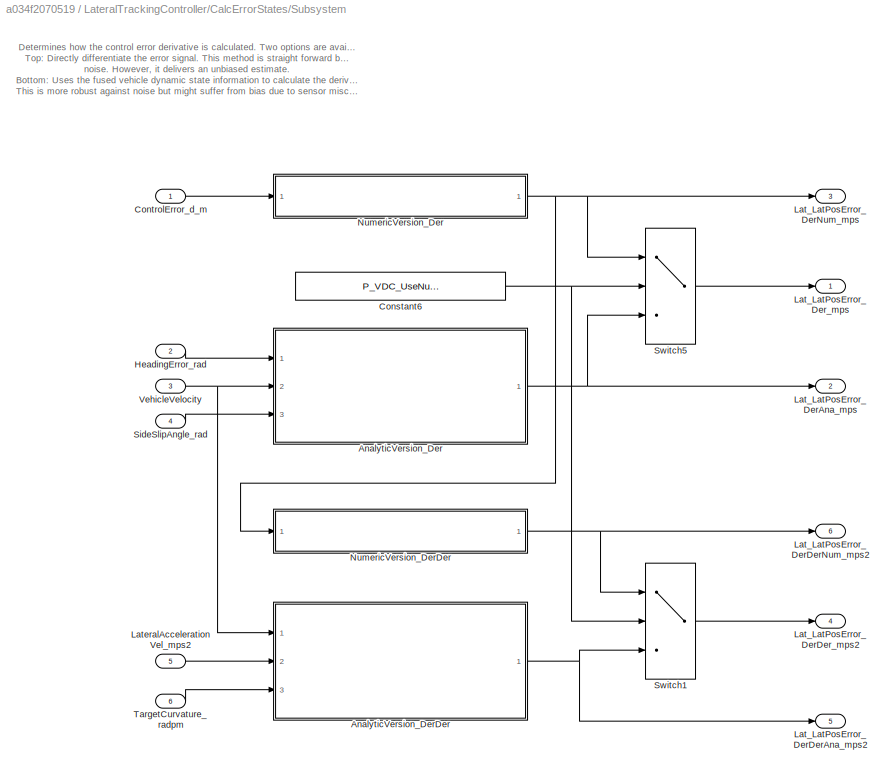
BLOCK [SubSystem] LateralTrackingController/CalcErrorStates/Subsystem
  Ports = [6, 6]
  RequestExecContextInheritance = off
BLOCK [SubSystem] LateralTrackingController/CalcErrorStates/Subsystem/AnalyticVersion_Der
  Ports = [3, 1]
  RequestExecContextInheritance = off
BLOCK [Gain] LateralTrackingController/CalcErrorStates/Subsystem/AnalyticVersion_Der/Gain6
  Gain = -1
  OutDataTypeStr = Inherit: Inherit via internal rule
  ParamDataTypeStr = Inherit: Inherit via internal rule
  SaturateOnIntegerOverflow = off
BLOCK [Inport] LateralTrackingController/CalcErrorStates/Subsystem/AnalyticVersion_Der/HeadingError_rad
  IconDisplay = Port number
BLOCK [Outport] LateralTrackingController/CalcErrorStates/Subsystem/AnalyticVersion_Der/PosErrorDerivative_mps
  IconDisplay = Port number
BLOCK [Product] LateralTrackingController/CalcErrorStates/Subsystem/AnalyticVersion_Der/Product
  InputSameDT = off
  OutDataTypeStr = Inherit: Inherit via internal rule
  Ports = [2, 1]
  RndMeth = Floor
  SaturateOnIntegerOverflow = off
BLOCK [Inport] LateralTrackingController/CalcErrorStates/Subsystem/AnalyticVersion_Der/SideSlipAngle_rad
  IconDisplay = Port number
  Port = 3
BLOCK [Sum] LateralTrackingController/CalcErrorStates/Subsystem/AnalyticVersion_Der/Sum4
  IconShape = round
  InputSameDT = off
  Inputs = |++
  OutDataTypeStr = Inherit: Inherit via internal rule
  Ports = [2, 1]
  SaturateOnIntegerOverflow = off
BLOCK [Trigonometry] LateralTrackingController/CalcErrorStates/Subsystem/AnalyticVersion_Der/Trigonometric Function
  Ports = [1, 1]
BLOCK [Inport] LateralTrackingController/CalcErrorStates/Subsystem/AnalyticVersion_Der/VehicleVelocity
  IconDisplay = Port number
  Port = 2
BLOCK [SubSystem] LateralTrackingController/CalcErrorStates/Subsystem/AnalyticVersion_Der/normalizeAngle
  ErrorFcn = Stateflow.Translate.translate
  PermitHierarchicalResolution = ExplicitOnly
  Ports = [1, 1]
  RequestExecContextInheritance = off
  SFBlockType = MATLAB Function
  TreatAsAtomicUnit = on
BLOCK [Demux] LateralTrackingController/CalcErrorStates/Subsystem/AnalyticVersion_Der/normalizeAngle/ Demux 
  Outputs = 1
  Ports = [1, 1]
BLOCK [S-Function] LateralTrackingController/CalcErrorStates/Subsystem/AnalyticVersion_Der/normalizeAngle/ SFunction 
  EnableBusSupport = on
  FunctionName = sf_sfun
  PortCounts = [1 2]
  Ports = [1, 2]
  SFcnIsStateOwnerBlock = off
  SFunctionDeploymentMode = off
  Tag = Stateflow S-Function mvdc_path_feedback 3
BLOCK [Terminator] LateralTrackingController/CalcErrorStates/Subsystem/AnalyticVersion_Der/normalizeAngle/ Terminator 
BLOCK [Inport] LateralTrackingController/CalcErrorStates/Subsystem/AnalyticVersion_Der/normalizeAngle/u
  IconDisplay = Port number
BLOCK [Outport] LateralTrackingController/CalcErrorStates/Subsystem/AnalyticVersion_Der/normalizeAngle/y
  IconDisplay = Port number
BLOCK [SubSystem] LateralTrackingController/CalcErrorStates/Subsystem/AnalyticVersion_DerDer
  Ports = [3, 1]
  RequestExecContextInheritance = off
BLOCK [Inport] LateralTrackingController/CalcErrorStates/Subsystem/AnalyticVersion_DerDer/LateralAccelerationVel_mps2
  IconDisplay = Port number
  Port = 2
BLOCK [Outport] LateralTrackingController/CalcErrorStates/Subsystem/AnalyticVersion_DerDer/PosErrorDerivative_mps
  IconDisplay = Port number
BLOCK [Product] LateralTrackingController/CalcErrorStates/Subsystem/AnalyticVersion_DerDer/Product
  InputSameDT = off
  Inputs = 3
  OutDataTypeStr = Inherit: Inherit via internal rule
  Ports = [3, 1]
  RndMeth = Floor
  SaturateOnIntegerOverflow = off
BLOCK [Sum] LateralTrackingController/CalcErrorStates/Subsystem/AnalyticVersion_DerDer/Sum
  IconShape = round
  InputSameDT = off
  Inputs = |-+
  OutDataTypeStr = Inherit: Inherit via internal rule
  Ports = [2, 1]
  SaturateOnIntegerOverflow = off
BLOCK [Inport] LateralTrackingController/CalcErrorStates/Subsystem/AnalyticVersion_DerDer/TargetCurvature_radpm
  IconDisplay = Port number
  Port = 3
BLOCK [Inport] LateralTrackingController/CalcErrorStates/Subsystem/AnalyticVersion_DerDer/VehicleSpeed_Actual_mps
  IconDisplay = Port number
BLOCK [Constant] LateralTrackingController/CalcErrorStates/Subsystem/Constant6
  Value = P_VDC_UseNumDerivativePathFeedback_b
BLOCK [Inport] LateralTrackingController/CalcErrorStates/Subsystem/ControlError_d_m
  IconDisplay = Port number
BLOCK [Inport] LateralTrackingController/CalcErrorStates/Subsystem/HeadingError_rad
  IconDisplay = Port number
  Port = 2
BLOCK [Outport] LateralTrackingController/CalcErrorStates/Subsystem/Lat_LatPosError_DerAna_mps
  IconDisplay = Port number
  Port = 2
BLOCK [Outport] LateralTrackingController/CalcErrorStates/Subsystem/Lat_LatPosError_DerDerAna_mps2
  IconDisplay = Port number
  Port = 5
BLOCK [Outport] LateralTrackingController/CalcErrorStates/Subsystem/Lat_LatPosError_DerDerNum_mps2
  IconDisplay = Port number
  Port = 6
BLOCK [Outport] LateralTrackingController/CalcErrorStates/Subsystem/Lat_LatPosError_DerDer_mps2
  IconDisplay = Port number
  Port = 4
BLOCK [Outport] LateralTrackingController/CalcErrorStates/Subsystem/Lat_LatPosError_DerNum_mps
  IconDisplay = Port number
  Port = 3
BLOCK [Outport] LateralTrackingController/CalcErrorStates/Subsystem/Lat_LatPosError_Der_mps
  IconDisplay = Port number
BLOCK [Inport] LateralTrackingController/CalcErrorStates/Subsystem/LateralAccelerationVel_mps2
  IconDisplay = Port number
  Port = 5
BLOCK [SubSystem] LateralTrackingController/CalcErrorStates/Subsystem/NumericVersion_Der
  Ports = [1, 1]
  RequestExecContextInheritance = off
BLOCK [Inport] LateralTrackingController/CalcErrorStates/Subsystem/NumericVersion_Der/ControlError_d_m
  IconDisplay = Port number
BLOCK [Reference] LateralTrackingController/CalcErrorStates/Subsystem/NumericVersion_Der/Discrete Derivative  REF=simulink/Discrete/Discrete Derivative
  Ports = [1, 1]
  SourceBlock = simulink/Discrete/Discrete Derivative
  SourceProductBaseCode = SL
  SourceProductName = Simulink
  SourceType = Discrete Derivative
BLOCK [Outport] LateralTrackingController/CalcErrorStates/Subsystem/NumericVersion_Der/Lat_LatPosError_DerNum_mps
  IconDisplay = Port number
BLOCK [Reference] LateralTrackingController/CalcErrorStates/Subsystem/NumericVersion_Der/Transfer Fcn First Order  REF=simulink/Discrete/Transfer Fcn
First Order
  Ports = [1, 1]
  SourceBlock = simulink/Discrete/Transfer Fcn\nFirst Order
  SourceProductBaseCode = SL
  SourceProductName = Simulink
  SourceType = First Order Transfer Fcn
BLOCK [SubSystem] LateralTrackingController/CalcErrorStates/Subsystem/NumericVersion_DerDer
  Ports = [1, 1]
  RequestExecContextInheritance = off
BLOCK [Reference] LateralTrackingController/CalcErrorStates/Subsystem/NumericVersion_DerDer/Discrete Derivative  REF=simulink/Discrete/Discrete Derivative
  Ports = [1, 1]
  SourceBlock = simulink/Discrete/Discrete Derivative
  SourceProductBaseCode = SL
  SourceProductName = Simulink
  SourceType = Discrete Derivative
BLOCK [Outport] LateralTrackingController/CalcErrorStates/Subsystem/NumericVersion_DerDer/Lat_LatPosError_DerDerNum_mps2
  IconDisplay = Port number
BLOCK [Inport] LateralTrackingController/CalcErrorStates/Subsystem/NumericVersion_DerDer/Lat_LatPosError_DerNum_mps
  IconDisplay = Port number
BLOCK [Reference] LateralTrackingController/CalcErrorStates/Subsystem/NumericVersion_DerDer/Transfer Fcn First Order  REF=simulink/Discrete/Transfer Fcn
First Order
  Ports = [1, 1]
  SourceBlock = simulink/Discrete/Transfer Fcn\nFirst Order
  SourceProductBaseCode = SL
  SourceProductName = Simulink
  SourceType = First Order Transfer Fcn
BLOCK [Inport] LateralTrackingController/CalcErrorStates/Subsystem/SideSlipAngle_rad
  IconDisplay = Port number
  Port = 4
BLOCK [Switch] LateralTrackingController/CalcErrorStates/Subsystem/Switch1
  Criteria = u2 ~= 0
  InputSameDT = off
  SaturateOnIntegerOverflow = off
BLOCK [Switch] LateralTrackingController/CalcErrorStates/Subsystem/Switch5
  Criteria = u2 ~= 0
  InputSameDT = off
  SaturateOnIntegerOverflow = off
BLOCK [Inport] LateralTrackingController/CalcErrorStates/Subsystem/TargetCurvature_radpm
  IconDisplay = Port number
  Port = 6
BLOCK [Inport] LateralTrackingController/CalcErrorStates/Subsystem/VehicleVelocity
  IconDisplay = Port number
  Port = 3
BLOCK [Inport] LateralTrackingController/CalcErrorStates/VehicleDynamicState
  IconDisplay = Port number
BLOCK [SubSystem] LateralTrackingController/CreateDebugBus
  Ports = [1, 1]
  RequestExecContextInheritance = off
BLOCK [BusCreator] LateralTrackingController/CreateDebugBus/Bus Creator
  DisplayOption = bar
  InheritFromInputs = on
  Inputs = 10
  Ports = [10, 1]
BLOCK [Outport] LateralTrackingController/CreateDebugBus/Debug
  IconDisplay = Port number
BLOCK [Demux] LateralTrackingController/CreateDebugBus/Demux
  DisplayOption = bar
  Outputs = 3
  Ports = [1, 3]
BLOCK [Demux] LateralTrackingController/CreateDebugBus/Demux2
  DisplayOption = bar
  Outputs = 6
  Ports = [1, 6]
BLOCK [From] LateralTrackingController/CreateDebugBus/From1
  GotoTag = Lat_FBDebug
  TagVisibility = global
BLOCK [From] LateralTrackingController/CreateDebugBus/From2
  GotoTag = Lat_ErrorStateDebug
  TagVisibility = global
BLOCK [Inport] LateralTrackingController/CreateDebugBus/OverallDebug
  IconDisplay = Port number
BLOCK [SignalConversion] LateralTrackingController/CreateDebugBus/Signal Conversion1
  OverrideOpt = off
BLOCK [SignalConversion] LateralTrackingController/CreateDebugBus/Signal Conversion10
  OverrideOpt = off
BLOCK [SignalConversion] LateralTrackingController/CreateDebugBus/Signal Conversion11
  OverrideOpt = off
BLOCK [SignalConversion] LateralTrackingController/CreateDebugBus/Signal Conversion12
  OverrideOpt = off
BLOCK [SignalConversion] LateralTrackingController/CreateDebugBus/Signal Conversion13
  OverrideOpt = off
BLOCK [SignalConversion] LateralTrackingController/CreateDebugBus/Signal Conversion2
  OverrideOpt = off
BLOCK [SignalConversion] LateralTrackingController/CreateDebugBus/Signal Conversion3
  OverrideOpt = off
BLOCK [SignalConversion] LateralTrackingController/CreateDebugBus/Signal Conversion6
  OverrideOpt = off
BLOCK [SignalConversion] LateralTrackingController/CreateDebugBus/Signal Conversion8
  OverrideOpt = off
BLOCK [SignalConversion] LateralTrackingController/CreateDebugBus/Signal Conversion9
  OverrideOpt = off
BLOCK [Outport] LateralTrackingController/Debug
  IconDisplay = Port number
  Port = 2
BLOCK [SubSystem] LateralTrackingController/FeedForward
  Ports = [1, 1]
  RequestExecContextInheritance = off
BLOCK [Inport] LateralTrackingController/FeedForward/ActualPathPoint
  IconDisplay = Port number
BLOCK [BusSelector] LateralTrackingController/FeedForward/Bus Selector
  OutputAsBus = off
  OutputSignals = kappa_radpm
  Ports = [1, 1]
BLOCK [Outport] LateralTrackingController/FeedForward/ControlValueFF_radpm
  IconDisplay = Port number
BLOCK [Outport] LateralTrackingController/KappaReq_radpm
  IconDisplay = Port number
BLOCK [Inport] LateralTrackingController/PathPosition
  IconDisplay = Port number
  Port = 3
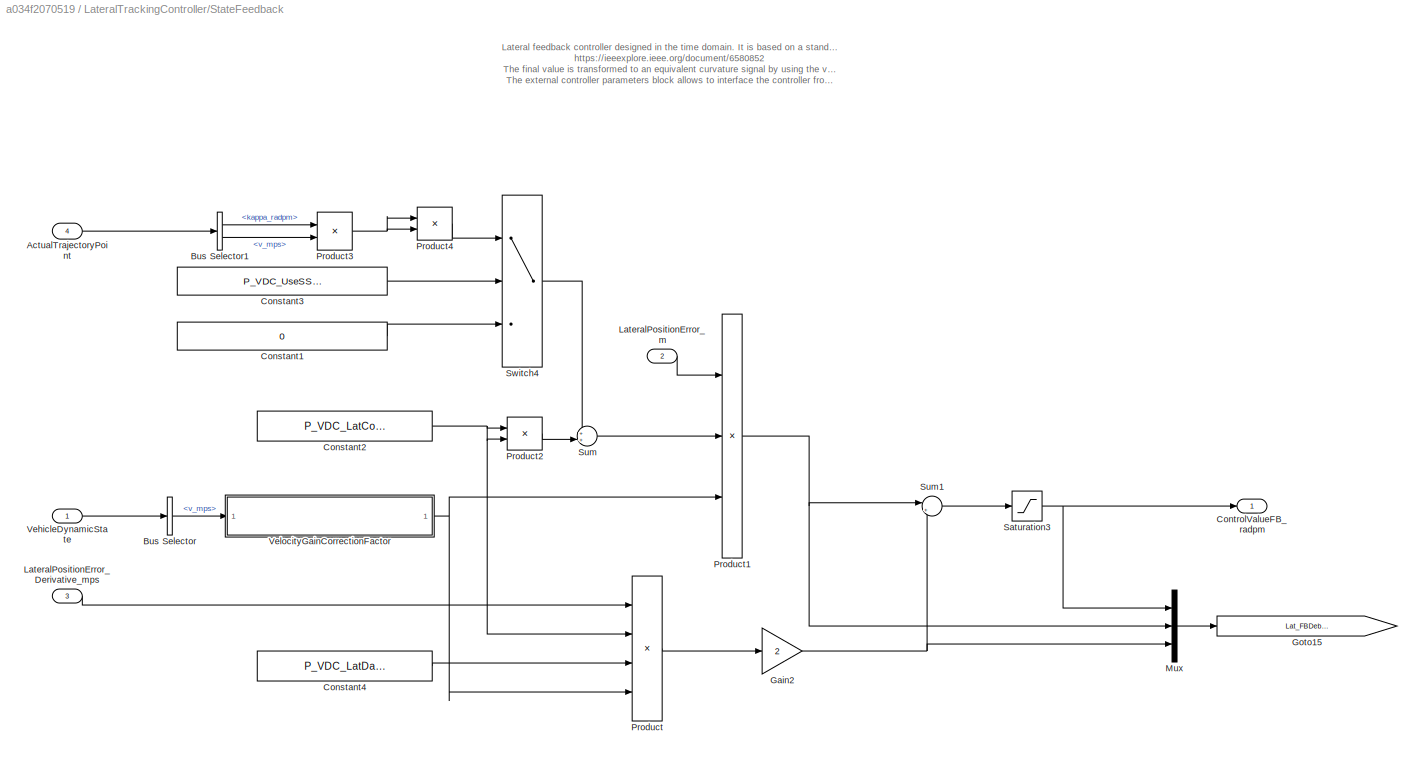
BLOCK [SubSystem] LateralTrackingController/StateFeedback
  Ports = [4, 1]
  RequestExecContextInheritance = off
BLOCK [Inport] LateralTrackingController/StateFeedback/ActualTrajectoryPoint
  IconDisplay = Port number
  Port = 4
BLOCK [BusSelector] LateralTrackingController/StateFeedback/Bus Selector
  OutputAsBus = off
  OutputSignals = v_mps
  Ports = [1, 1]
BLOCK [BusSelector] LateralTrackingController/StateFeedback/Bus Selector1
  OutputAsBus = off
  OutputSignals = kappa_radpm,v_mps
  Ports = [1, 2]
BLOCK [Constant] LateralTrackingController/StateFeedback/Constant1
  Value = 0
BLOCK [Constant] LateralTrackingController/StateFeedback/Constant2
  Value = P_VDC_LatConvergence
BLOCK [Constant] LateralTrackingController/StateFeedback/Constant3
  Value = P_VDC_UseSSCDynamicsComp_b
BLOCK [Constant] LateralTrackingController/StateFeedback/Constant4
  Value = P_VDC_LatDamping
BLOCK [Outport] LateralTrackingController/StateFeedback/ControlValueFB_radpm
  IconDisplay = Port number
BLOCK [Gain] LateralTrackingController/StateFeedback/Gain2
  Gain = 2
  OutDataTypeStr = Inherit: Inherit via internal rule
  ParamDataTypeStr = Inherit: Inherit via internal rule
  SaturateOnIntegerOverflow = off
BLOCK [Goto] LateralTrackingController/StateFeedback/Goto15
  GotoTag = Lat_FBDebug
  TagVisibility = global
BLOCK [Inport] LateralTrackingController/StateFeedback/LateralPositionError_Derivative_mps
  IconDisplay = Port number
  Port = 3
BLOCK [Inport] LateralTrackingController/StateFeedback/LateralPositionError_m
  IconDisplay = Port number
  Port = 2
BLOCK [Mux] LateralTrackingController/StateFeedback/Mux
  DisplayOption = bar
  Inputs = 3
  Ports = [3, 1]
BLOCK [Product] LateralTrackingController/StateFeedback/Product
  InputSameDT = off
  Inputs = 4
  OutDataTypeStr = Inherit: Inherit via internal rule
  Ports = [4, 1]
  RndMeth = Floor
  SaturateOnIntegerOverflow = off
BLOCK [Product] LateralTrackingController/StateFeedback/Product1
  InputSameDT = off
  Inputs = 3
  OutDataTypeStr = Inherit: Inherit via internal rule
  Ports = [3, 1]
  RndMeth = Floor
  SaturateOnIntegerOverflow = off
BLOCK [Product] LateralTrackingController/StateFeedback/Product2
  InputSameDT = off
  OutDataTypeStr = Inherit: Inherit via internal rule
  Ports = [2, 1]
  RndMeth = Floor
  SaturateOnIntegerOverflow = off
BLOCK [Product] LateralTrackingController/StateFeedback/Product3
  InputSameDT = off
  OutDataTypeStr = Inherit: Inherit via internal rule
  Ports = [2, 1]
  RndMeth = Floor
  SaturateOnIntegerOverflow = off
BLOCK [Product] LateralTrackingController/StateFeedback/Product4
  InputSameDT = off
  OutDataTypeStr = Inherit: Inherit via internal rule
  Ports = [2, 1]
  RndMeth = Floor
  SaturateOnIntegerOverflow = off
BLOCK [Saturate] LateralTrackingController/StateFeedback/Saturation3
  InputPortMap = u0
  LowerLimit = -P_VDC_LatKappaMaxFB_radpm
  Ports = [1, 1]
  UpperLimit = P_VDC_LatKappaMaxFB_radpm
BLOCK [Sum] LateralTrackingController/StateFeedback/Sum
  IconShape = round
  InputSameDT = off
  Inputs = ++|
  OutDataTypeStr = Inherit: Inherit via internal rule
  Ports = [2, 1]
  SaturateOnIntegerOverflow = off
BLOCK [Sum] LateralTrackingController/StateFeedback/Sum1
  IconShape = round
  InputSameDT = off
  Inputs = |++
  OutDataTypeStr = Inherit: Inherit via internal rule
  Ports = [2, 1]
  SaturateOnIntegerOverflow = off
BLOCK [Switch] LateralTrackingController/StateFeedback/Switch4
  Criteria = u2 ~= 0
  InputSameDT = off
  SaturateOnIntegerOverflow = off
BLOCK [Inport] LateralTrackingController/StateFeedback/VehicleDynamicState
  IconDisplay = Port number
BLOCK [SubSystem] LateralTrackingController/StateFeedback/VelocityGainCorrectionFactor
  Ports = [1, 1]
  RequestExecContextInheritance = off
BLOCK [Constant] LateralTrackingController/StateFeedback/VelocityGainCorrectionFactor/Constant
BLOCK [Constant] LateralTrackingController/StateFeedback/VelocityGainCorrectionFactor/Constant3
  Value = P_VDC_MinSpeedGainCorrection_mps
BLOCK [Product] LateralTrackingController/StateFeedback/VelocityGainCorrectionFactor/Divide
  InputSameDT = off
  Inputs = */
  OutDataTypeStr = Inherit: Inherit via internal rule
  Ports = [2, 1]
  RndMeth = Floor
  SaturateOnIntegerOverflow = off
BLOCK [Outport] LateralTrackingController/StateFeedback/VelocityGainCorrectionFactor/GainCorrectionFactor
  IconDisplay = Port number
BLOCK [MinMax] LateralTrackingController/StateFeedback/VelocityGainCorrectionFactor/MinMax
  Function = max
  InputSameDT = off
  Inputs = 2
  Ports = [2, 1]
  SaturateOnIntegerOverflow = off
BLOCK [Product] LateralTrackingController/StateFeedback/VelocityGainCorrectionFactor/Product
  InputSameDT = off
  OutDataTypeStr = Inherit: Inherit via internal rule
  Ports = [2, 1]
  RndMeth = Floor
  SaturateOnIntegerOverflow = off
BLOCK [Inport] LateralTrackingController/StateFeedback/VelocityGainCorrectionFactor/VehicleVelocity_mps
  IconDisplay = Port number
BLOCK [Inport] LateralTrackingController/VehicleDynamicState
  IconDisplay = Port number
  Port = 2
BLOCK [SubSystem] LongFeedForwardGenerator
  Ports = [2, 2]
  RequestExecContextInheritance = off
BLOCK [Inport] LongFeedForwardGenerator/ActualTrajectoryPoint
  IconDisplay = Port number
BLOCK [BusSelector] LongFeedForwardGenerator/Bus Selector
  OutputAsBus = off
  OutputSignals = v_mps,ax_mps2
  Ports = [1, 2]
BLOCK [BusSelector] LongFeedForwardGenerator/Bus Selector1
  OutputAsBus = off
  OutputSignals = v_mps
  Ports = [1, 1]
BLOCK [Constant] LongFeedForwardGenerator/Constant4
  Value = P_VDC_UseLongFF_PT1_b
BLOCK [Product] LongFeedForwardGenerator/Divide3
  InputSameDT = off
  Inputs = */
  OutDataTypeStr = Inherit: Inherit via internal rule
  Ports = [2, 1]
  RndMeth = Floor
  SaturateOnIntegerOverflow = off
BLOCK [Product] LongFeedForwardGenerator/Product
  InputSameDT = off
  OutDataTypeStr = Inherit: Inherit via internal rule
  Ports = [2, 1]
  RndMeth = Floor
  SaturateOnIntegerOverflow = off
BLOCK [Outport] LongFeedForwardGenerator/Req_ax_mps2
  IconDisplay = Port number
  Port = 2
BLOCK [Outport] LongFeedForwardGenerator/Req_v_mps
  IconDisplay = Port number
BLOCK [Saturate] LongFeedForwardGenerator/Saturation
  InputPortMap = u0
  LowerLimit = P_VDC_MinVelSlipCalc_mps
  Ports = [1, 1]
  UpperLimit = inf
BLOCK [Saturate] LongFeedForwardGenerator/Saturation1
  InputPortMap = u0
  LowerLimit = P_VDC_MinVelSlipCalc_mps
  Ports = [1, 1]
  UpperLimit = inf
BLOCK [Switch] LongFeedForwardGenerator/Switch2
  Criteria = u2 ~= 0
  InputSameDT = off
  SaturateOnIntegerOverflow = off
BLOCK [Reference] LongFeedForwardGenerator/Transfer Fcn First Order  REF=simulink/Discrete/Transfer Fcn
First Order
  Ports = [1, 1]
  SourceBlock = simulink/Discrete/Transfer Fcn\nFirst Order
  SourceProductBaseCode = SL
  SourceProductName = Simulink
  SourceType = First Order Transfer Fcn
BLOCK [Inport] LongFeedForwardGenerator/VehicleDynamicState
  IconDisplay = Port number
  Port = 2
BLOCK [Mux] Mux
  DisplayOption = bar
  Inputs = 3
  Ports = [3, 1]
BLOCK [SignalConversion] Signal Conversion1
  OverrideOpt = off
BLOCK [SignalConversion] Signal Conversion3
  OverrideOpt = off
BLOCK [Switch] Switch
  Criteria = u2 > Threshold
  InputSameDT = off
  SaturateOnIntegerOverflow = off
BLOCK [Outport] VehicleControlTargetValues
  IconDisplay = Port number
  OutDataTypeStr = Bus: TargetValuesVehicleDynamics
BLOCK [Inport] VehicleDynamicState
  IconDisplay = Port number
  OutDataTypeStr = Bus: VehicleDynamicState
  Port = 3
ANNOTATION (root): Author: Alexander Wischnewski (<email>) Chair of Automatic Control at TU Munich Description: Implements a path tracking controller for an autonomous race car. It aims at a very generic implementation and therefore only a few model specific informations are used. The LongFeedForwardGenerator block generates the setpoints and feedforward information for the lower level velocity controller. The Later...<+532ch>
ANNOTATION LateralTrackingController: The lateral tracking controller can be divided into four parts. CalcErrorStates generates the necessary control error values and its derivatives. FeedForward generates a suitable feedfoward signal based on the target path. The StateFeedback implements a PD-like controller with velocity based gain-scheduling.
ANNOTATION LateralTrackingController/CalcErrorStates/DetermineSideslipForFeedbackCalculation: Determines which side slip angle is used for calculation of the control error derivative. Two options are available: Top : Use measured/estimated side slip angle. This might lead to oscillations in case of noisy values. Use only with good quality side slip angle estimates. Bottom : Calculates the neutral steer steering angle value for the current target curvature of the path. Afterwards, the chass...<+307ch>
ANNOTATION LateralTrackingController/CalcErrorStates/Subsystem: Determines how the control error derivative is calculated. Two options are available: Top : Directly differentiate the error signal. This method is straight forward but might suffer from noise. However, it delivers an unbiased estimate. Bottom : Uses the fused vehicle dynamic state information to calculate the derivative analytically. This is more robust against noise but might suffer from bias du...<+27ch>
ANNOTATION LateralTrackingController/StateFeedback: Lateral feedback controller designed in the time domain. It is based on a standard PD controller design. It is carried out for a double integrator system with the position error e as the control output and the corrective lateral acceleration as the control input. The available modification via P_VDC_UseSSCDynamicsComp_b compensates for the influence of the cornering situation on the closed-loop dy...<+315ch>
ANNOTATION LateralTrackingController/StateFeedback/VelocityGainCorrectionFactor: The velocity gain correction factor is calculated such that the corrective acceleration from the controller is mapped to an equivalent curvature request. For small velocities a minimum value is used for calculation. This leads to less control effort at low speeds and ensures a smooth operation of the control system. Otherwise the controller gains would tend to infinity for small speeds.
LINE ActualPathPosition:1 -> LateralTrackingController:3
NET ActualTrajectoryPoint:1 -> LateralTrackingController:1, LongFeedForwardGenerator:1
LINE Bus Creator:1 -> VehicleControlTargetValues:1
LINE Constant:1 -> Switch:3
LINE Demux:1 -> Bus Creator:1
LINE Demux:2 -> Bus Creator:2
LINE Demux:3 -> Bus Creator:3
NET EnableDrivingController:1 -> Signal Conversion3:1, Switch:2
LINE EnableEmergency:1 -> Signal Conversion1:1
NET LateralTrackingController/ActualTrajectoryPoint:1 -> LateralTrackingController/CalcErrorStates:3, LateralTrackingController/FeedForward:1, LateralTrackingController/StateFeedback:4
NET LateralTrackingController/Add:1 -> LateralTrackingController/CreateDebugBus:1, LateralTrackingController/KappaReq_radpm:1
LINE LateralTrackingController/CalcErrorStates/ActualTrajectoryPoint:1 -> LateralTrackingController/CalcErrorStates/Bus Selector1:1
NET LateralTrackingController/CalcErrorStates/Bus Selector1:1 -> LateralTrackingController/CalcErrorStates/DetermineSideslipForFeedbackCalculation:2, LateralTrackingController/CalcErrorStates/Subsystem:6
LINE LateralTrackingController/CalcErrorStates/Bus Selector2:1 -> LateralTrackingController/CalcErrorStates/Subsystem:5
LINE LateralTrackingController/CalcErrorStates/Bus Selector3:1 -> LateralTrackingController/CalcErrorStates/Gain5:1
LINE LateralTrackingController/CalcErrorStates/Bus Selector3:2 -> LateralTrackingController/CalcErrorStates/Subsystem:2
LINE LateralTrackingController/CalcErrorStates/Bus Selector:1 -> LateralTrackingController/CalcErrorStates/Subsystem:3
LINE LateralTrackingController/CalcErrorStates/Bus Selector:2 -> LateralTrackingController/CalcErrorStates/DetermineSideslipForFeedbackCalculation:1
LINE LateralTrackingController/CalcErrorStates/DetermineSideslipForFeedbackCalculation/Constant2:1 -> LateralTrackingController/CalcErrorStates/DetermineSideslipForFeedbackCalculation/Switch3:2
LINE LateralTrackingController/CalcErrorStates/DetermineSideslipForFeedbackCalculation/Gain1:1 -> LateralTrackingController/CalcErrorStates/DetermineSideslipForFeedbackCalculation/Gain2:1
LINE LateralTrackingController/CalcErrorStates/DetermineSideslipForFeedbackCalculation/Gain2:1 -> LateralTrackingController/CalcErrorStates/DetermineSideslipForFeedbackCalculation/Switch3:3
LINE LateralTrackingController/CalcErrorStates/DetermineSideslipForFeedbackCalculation/Switch3:1 -> LateralTrackingController/CalcErrorStates/DetermineSideslipForFeedbackCalculation/beta_rad_feedback:1
LINE LateralTrackingController/CalcErrorStates/DetermineSideslipForFeedbackCalculation/beta_rad:1 -> LateralTrackingController/CalcErrorStates/DetermineSideslipForFeedbackCalculation/Switch3:1
LINE LateralTrackingController/CalcErrorStates/DetermineSideslipForFeedbackCalculation/kappa_radpm:1 -> LateralTrackingController/CalcErrorStates/DetermineSideslipForFeedbackCalculation/Gain1:1
LINE LateralTrackingController/CalcErrorStates/DetermineSideslipForFeedbackCalculation:1 -> LateralTrackingController/CalcErrorStates/Subsystem:4
NET LateralTrackingController/CalcErrorStates/Gain5:1 -> LateralTrackingController/CalcErrorStates/Lat_LatPosError_m:1, LateralTrackingController/CalcErrorStates/Mux:1, LateralTrackingController/CalcErrorStates/Subsystem:1
LINE LateralTrackingController/CalcErrorStates/Mux:1 -> LateralTrackingController/CalcErrorStates/Goto15:1
LINE LateralTrackingController/CalcErrorStates/PathPosition:1 -> LateralTrackingController/CalcErrorStates/Bus Selector3:1
LINE LateralTrackingController/CalcErrorStates/Subsystem/AnalyticVersion_Der/Gain6:1 -> LateralTrackingController/CalcErrorStates/Subsystem/AnalyticVersion_Der/Trigonometric Function:1
LINE LateralTrackingController/CalcErrorStates/Subsystem/AnalyticVersion_Der/HeadingError_rad:1 -> LateralTrackingController/CalcErrorStates/Subsystem/AnalyticVersion_Der/Sum4:1
LINE LateralTrackingController/CalcErrorStates/Subsystem/AnalyticVersion_Der/Product:1 -> LateralTrackingController/CalcErrorStates/Subsystem/AnalyticVersion_Der/PosErrorDerivative_mps:1
LINE LateralTrackingController/CalcErrorStates/Subsystem/AnalyticVersion_Der/SideSlipAngle_rad:1 -> LateralTrackingController/CalcErrorStates/Subsystem/AnalyticVersion_Der/Sum4:2
LINE LateralTrackingController/CalcErrorStates/Subsystem/AnalyticVersion_Der/Sum4:1 -> LateralTrackingController/CalcErrorStates/Subsystem/AnalyticVersion_Der/normalizeAngle:1
LINE LateralTrackingController/CalcErrorStates/Subsystem/AnalyticVersion_Der/Trigonometric Function:1 -> LateralTrackingController/CalcErrorStates/Subsystem/AnalyticVersion_Der/Product:2
LINE LateralTrackingController/CalcErrorStates/Subsystem/AnalyticVersion_Der/VehicleVelocity:1 -> LateralTrackingController/CalcErrorStates/Subsystem/AnalyticVersion_Der/Product:1
LINE LateralTrackingController/CalcErrorStates/Subsystem/AnalyticVersion_Der/normalizeAngle:1 -> LateralTrackingController/CalcErrorStates/Subsystem/AnalyticVersion_Der/Gain6:1
NET LateralTrackingController/CalcErrorStates/Subsystem/AnalyticVersion_Der:1 -> LateralTrackingController/CalcErrorStates/Subsystem/Lat_LatPosError_DerAna_mps:1, LateralTrackingController/CalcErrorStates/Subsystem/Switch5:3
LINE LateralTrackingController/CalcErrorStates/Subsystem/AnalyticVersion_DerDer/LateralAccelerationVel_mps2:1 -> LateralTrackingController/CalcErrorStates/Subsystem/AnalyticVersion_DerDer/Sum:1
LINE LateralTrackingController/CalcErrorStates/Subsystem/AnalyticVersion_DerDer/Product:1 -> LateralTrackingController/CalcErrorStates/Subsystem/AnalyticVersion_DerDer/Sum:2
LINE LateralTrackingController/CalcErrorStates/Subsystem/AnalyticVersion_DerDer/Sum:1 -> LateralTrackingController/CalcErrorStates/Subsystem/AnalyticVersion_DerDer/PosErrorDerivative_mps:1
LINE LateralTrackingController/CalcErrorStates/Subsystem/AnalyticVersion_DerDer/TargetCurvature_radpm:1 -> LateralTrackingController/CalcErrorStates/Subsystem/AnalyticVersion_DerDer/Product:1
NET LateralTrackingController/CalcErrorStates/Subsystem/AnalyticVersion_DerDer/VehicleSpeed_Actual_mps:1 -> LateralTrackingController/CalcErrorStates/Subsystem/AnalyticVersion_DerDer/Product:2, LateralTrackingController/CalcErrorStates/Subsystem/AnalyticVersion_DerDer/Product:3
NET LateralTrackingController/CalcErrorStates/Subsystem/AnalyticVersion_DerDer:1 -> LateralTrackingController/CalcErrorStates/Subsystem/Lat_LatPosError_DerDerAna_mps2:1, LateralTrackingController/CalcErrorStates/Subsystem/Switch1:3
NET LateralTrackingController/CalcErrorStates/Subsystem/Constant6:1 -> LateralTrackingController/CalcErrorStates/Subsystem/Switch1:2, LateralTrackingController/CalcErrorStates/Subsystem/Switch5:2
LINE LateralTrackingController/CalcErrorStates/Subsystem/ControlError_d_m:1 -> LateralTrackingController/CalcErrorStates/Subsystem/NumericVersion_Der:1
LINE LateralTrackingController/CalcErrorStates/Subsystem/HeadingError_rad:1 -> LateralTrackingController/CalcErrorStates/Subsystem/AnalyticVersion_Der:1
LINE LateralTrackingController/CalcErrorStates/Subsystem/LateralAccelerationVel_mps2:1 -> LateralTrackingController/CalcErrorStates/Subsystem/AnalyticVersion_DerDer:2
LINE LateralTrackingController/CalcErrorStates/Subsystem/NumericVersion_Der/ControlError_d_m:1 -> LateralTrackingController/CalcErrorStates/Subsystem/NumericVersion_Der/Discrete Derivative:1
LINE LateralTrackingController/CalcErrorStates/Subsystem/NumericVersion_Der/Discrete Derivative:1 -> LateralTrackingController/CalcErrorStates/Subsystem/NumericVersion_Der/Transfer Fcn First Order:1
LINE LateralTrackingController/CalcErrorStates/Subsystem/NumericVersion_Der/Transfer Fcn First Order:1 -> LateralTrackingController/CalcErrorStates/Subsystem/NumericVersion_Der/Lat_LatPosError_DerNum_mps:1
NET LateralTrackingController/CalcErrorStates/Subsystem/NumericVersion_Der:1 -> LateralTrackingController/CalcErrorStates/Subsystem/Lat_LatPosError_DerNum_mps:1, LateralTrackingController/CalcErrorStates/Subsystem/NumericVersion_DerDer:1, LateralTrackingController/CalcErrorStates/Subsystem/Switch5:1
LINE LateralTrackingController/CalcErrorStates/Subsystem/NumericVersion_DerDer/Discrete Derivative:1 -> LateralTrackingController/CalcErrorStates/Subsystem/NumericVersion_DerDer/Transfer Fcn First Order:1
LINE LateralTrackingController/CalcErrorStates/Subsystem/NumericVersion_DerDer/Lat_LatPosError_DerNum_mps:1 -> LateralTrackingController/CalcErrorStates/Subsystem/NumericVersion_DerDer/Discrete Derivative:1
LINE LateralTrackingController/CalcErrorStates/Subsystem/NumericVersion_DerDer/Transfer Fcn First Order:1 -> LateralTrackingController/CalcErrorStates/Subsystem/NumericVersion_DerDer/Lat_LatPosError_DerDerNum_mps2:1
NET LateralTrackingController/CalcErrorStates/Subsystem/NumericVersion_DerDer:1 -> LateralTrackingController/CalcErrorStates/Subsystem/Lat_LatPosError_DerDerNum_mps2:1, LateralTrackingController/CalcErrorStates/Subsystem/Switch1:1
LINE LateralTrackingController/CalcErrorStates/Subsystem/SideSlipAngle_rad:1 -> LateralTrackingController/CalcErrorStates/Subsystem/AnalyticVersion_Der:3
LINE LateralTrackingController/CalcErrorStates/Subsystem/Switch1:1 -> LateralTrackingController/CalcErrorStates/Subsystem/Lat_LatPosError_DerDer_mps2:1
LINE LateralTrackingController/CalcErrorStates/Subsystem/Switch5:1 -> LateralTrackingController/CalcErrorStates/Subsystem/Lat_LatPosError_Der_mps:1
LINE LateralTrackingController/CalcErrorStates/Subsystem/TargetCurvature_radpm:1 -> LateralTrackingController/CalcErrorStates/Subsystem/AnalyticVersion_DerDer:3
NET LateralTrackingController/CalcErrorStates/Subsystem/VehicleVelocity:1 -> LateralTrackingController/CalcErrorStates/Subsystem/AnalyticVersion_Der:2, LateralTrackingController/CalcErrorStates/Subsystem/AnalyticVersion_DerDer:1
LINE LateralTrackingController/CalcErrorStates/Subsystem:1 -> LateralTrackingController/CalcErrorStates/Lat_LatPosError_Der_mps:1
LINE LateralTrackingController/CalcErrorStates/Subsystem:2 -> LateralTrackingController/CalcErrorStates/Mux:2
LINE LateralTrackingController/CalcErrorStates/Subsystem:3 -> LateralTrackingController/CalcErrorStates/Mux:3
LINE LateralTrackingController/CalcErrorStates/Subsystem:4 -> LateralTrackingController/CalcErrorStates/Mux:4
LINE LateralTrackingController/CalcErrorStates/Subsystem:5 -> LateralTrackingController/CalcErrorStates/Mux:5
LINE LateralTrackingController/CalcErrorStates/Subsystem:6 -> LateralTrackingController/CalcErrorStates/Mux:6
NET LateralTrackingController/CalcErrorStates/VehicleDynamicState:1 -> LateralTrackingController/CalcErrorStates/Bus Selector2:1, LateralTrackingController/CalcErrorStates/Bus Selector:1
LINE LateralTrackingController/CalcErrorStates:1 -> LateralTrackingController/StateFeedback:2
LINE LateralTrackingController/CalcErrorStates:2 -> LateralTrackingController/StateFeedback:3
LINE LateralTrackingController/CreateDebugBus/Bus Creator:1 -> LateralTrackingController/CreateDebugBus/Debug:1
LINE LateralTrackingController/CreateDebugBus/Demux2:1 -> LateralTrackingController/CreateDebugBus/Signal Conversion9:1
LINE LateralTrackingController/CreateDebugBus/Demux2:2 -> LateralTrackingController/CreateDebugBus/Signal Conversion12:1
LINE LateralTrackingController/CreateDebugBus/Demux2:3 -> LateralTrackingController/CreateDebugBus/Signal Conversion11:1
LINE LateralTrackingController/CreateDebugBus/Demux2:4 -> LateralTrackingController/CreateDebugBus/Signal Conversion3:1
LINE LateralTrackingController/CreateDebugBus/Demux2:5 -> LateralTrackingController/CreateDebugBus/Signal Conversion2:1
LINE LateralTrackingController/CreateDebugBus/Demux2:6 -> LateralTrackingController/CreateDebugBus/Signal Conversion1:1
LINE LateralTrackingController/CreateDebugBus/Demux:1 -> LateralTrackingController/CreateDebugBus/Signal Conversion6:1
LINE LateralTrackingController/CreateDebugBus/Demux:2 -> LateralTrackingController/CreateDebugBus/Signal Conversion8:1
LINE LateralTrackingController/CreateDebugBus/Demux:3 -> LateralTrackingController/CreateDebugBus/Signal Conversion10:1
LINE LateralTrackingController/CreateDebugBus/From1:1 -> LateralTrackingController/CreateDebugBus/Demux:1
LINE LateralTrackingController/CreateDebugBus/From2:1 -> LateralTrackingController/CreateDebugBus/Demux2:1
LINE LateralTrackingController/CreateDebugBus/OverallDebug:1 -> LateralTrackingController/CreateDebugBus/Signal Conversion13:1
LINE LateralTrackingController/CreateDebugBus/Signal Conversion10:1 -> LateralTrackingController/CreateDebugBus/Bus Creator:3
LINE LateralTrackingController/CreateDebugBus/Signal Conversion11:1 -> LateralTrackingController/CreateDebugBus/Bus Creator:6
LINE LateralTrackingController/CreateDebugBus/Signal Conversion12:1 -> LateralTrackingController/CreateDebugBus/Bus Creator:5
LINE LateralTrackingController/CreateDebugBus/Signal Conversion13:1 -> LateralTrackingController/CreateDebugBus/Bus Creator:10
LINE LateralTrackingController/CreateDebugBus/Signal Conversion1:1 -> LateralTrackingController/CreateDebugBus/Bus Creator:9
LINE LateralTrackingController/CreateDebugBus/Signal Conversion2:1 -> LateralTrackingController/CreateDebugBus/Bus Creator:8
LINE LateralTrackingController/CreateDebugBus/Signal Conversion3:1 -> LateralTrackingController/CreateDebugBus/Bus Creator:7
LINE LateralTrackingController/CreateDebugBus/Signal Conversion6:1 -> LateralTrackingController/CreateDebugBus/Bus Creator:1
LINE LateralTrackingController/CreateDebugBus/Signal Conversion8:1 -> LateralTrackingController/CreateDebugBus/Bus Creator:2
LINE LateralTrackingController/CreateDebugBus/Signal Conversion9:1 -> LateralTrackingController/CreateDebugBus/Bus Creator:4
LINE LateralTrackingController/CreateDebugBus:1 -> LateralTrackingController/Debug:1
LINE LateralTrackingController/FeedForward/ActualPathPoint:1 -> LateralTrackingController/FeedForward/Bus Selector:1
LINE LateralTrackingController/FeedForward/Bus Selector:1 -> LateralTrackingController/FeedForward/ControlValueFF_radpm:1
LINE LateralTrackingController/FeedForward:1 -> LateralTrackingController/Add:1
LINE LateralTrackingController/PathPosition:1 -> LateralTrackingController/CalcErrorStates:2
LINE LateralTrackingController/StateFeedback/ActualTrajectoryPoint:1 -> LateralTrackingController/StateFeedback/Bus Selector1:1
LINE LateralTrackingController/StateFeedback/Bus Selector1:1 -> LateralTrackingController/StateFeedback/Product3:1
LINE LateralTrackingController/StateFeedback/Bus Selector1:2 -> LateralTrackingController/StateFeedback/Product3:2
LINE LateralTrackingController/StateFeedback/Bus Selector:1 -> LateralTrackingController/StateFeedback/VelocityGainCorrectionFactor:1
LINE LateralTrackingController/StateFeedback/Constant1:1 -> LateralTrackingController/StateFeedback/Switch4:3
NET LateralTrackingController/StateFeedback/Constant2:1 -> LateralTrackingController/StateFeedback/Product2:1, LateralTrackingController/StateFeedback/Product2:2, LateralTrackingController/StateFeedback/Product:2
LINE LateralTrackingController/StateFeedback/Constant3:1 -> LateralTrackingController/StateFeedback/Switch4:2
LINE LateralTrackingController/StateFeedback/Constant4:1 -> LateralTrackingController/StateFeedback/Product:3
NET LateralTrackingController/StateFeedback/Gain2:1 -> LateralTrackingController/StateFeedback/Mux:3, LateralTrackingController/StateFeedback/Sum1:2
LINE LateralTrackingController/StateFeedback/LateralPositionError_Derivative_mps:1 -> LateralTrackingController/StateFeedback/Product:1
LINE LateralTrackingController/StateFeedback/LateralPositionError_m:1 -> LateralTrackingController/StateFeedback/Product1:1
LINE LateralTrackingController/StateFeedback/Mux:1 -> LateralTrackingController/StateFeedback/Goto15:1
NET LateralTrackingController/StateFeedback/Product1:1 -> LateralTrackingController/StateFeedback/Mux:2, LateralTrackingController/StateFeedback/Sum1:1
LINE LateralTrackingController/StateFeedback/Product2:1 -> LateralTrackingController/StateFeedback/Sum:2
NET LateralTrackingController/StateFeedback/Product3:1 -> LateralTrackingController/StateFeedback/Product4:1, LateralTrackingController/StateFeedback/Product4:2
LINE LateralTrackingController/StateFeedback/Product4:1 -> LateralTrackingController/StateFeedback/Switch4:1
LINE LateralTrackingController/StateFeedback/Product:1 -> LateralTrackingController/StateFeedback/Gain2:1
NET LateralTrackingController/StateFeedback/Saturation3:1 -> LateralTrackingController/StateFeedback/ControlValueFB_radpm:1, LateralTrackingController/StateFeedback/Mux:1
LINE LateralTrackingController/StateFeedback/Sum1:1 -> LateralTrackingController/StateFeedback/Saturation3:1
LINE LateralTrackingController/StateFeedback/Sum:1 -> LateralTrackingController/StateFeedback/Product1:2
LINE LateralTrackingController/StateFeedback/Switch4:1 -> LateralTrackingController/StateFeedback/Sum:1
LINE LateralTrackingController/StateFeedback/VehicleDynamicState:1 -> LateralTrackingController/StateFeedback/Bus Selector:1
LINE LateralTrackingController/StateFeedback/VelocityGainCorrectionFactor/Constant3:1 -> LateralTrackingController/StateFeedback/VelocityGainCorrectionFactor/MinMax:2
LINE LateralTrackingController/StateFeedback/VelocityGainCorrectionFactor/Constant:1 -> LateralTrackingController/StateFeedback/VelocityGainCorrectionFactor/Divide:1
NET LateralTrackingController/StateFeedback/VelocityGainCorrectionFactor/Divide:1 -> LateralTrackingController/StateFeedback/VelocityGainCorrectionFactor/Product:1, LateralTrackingController/StateFeedback/VelocityGainCorrectionFactor/Product:2
LINE LateralTrackingController/StateFeedback/VelocityGainCorrectionFactor/MinMax:1 -> LateralTrackingController/StateFeedback/VelocityGainCorrectionFactor/Divide:2
LINE LateralTrackingController/StateFeedback/VelocityGainCorrectionFactor/Product:1 -> LateralTrackingController/StateFeedback/VelocityGainCorrectionFactor/GainCorrectionFactor:1
LINE LateralTrackingController/StateFeedback/VelocityGainCorrectionFactor/VehicleVelocity_mps:1 -> LateralTrackingController/StateFeedback/VelocityGainCorrectionFactor/MinMax:1
NET LateralTrackingController/StateFeedback/VelocityGainCorrectionFactor:1 -> LateralTrackingController/StateFeedback/Product1:3, LateralTrackingController/StateFeedback/Product:4
LINE LateralTrackingController/StateFeedback:1 -> LateralTrackingController/Add:2
NET LateralTrackingController/VehicleDynamicState:1 -> LateralTrackingController/CalcErrorStates:1, LateralTrackingController/StateFeedback:1
LINE LateralTrackingController:1 -> Mux:3
LINE LateralTrackingController:2 -> Debug:1
LINE LongFeedForwardGenerator/ActualTrajectoryPoint:1 -> LongFeedForwardGenerator/Bus Selector:1
LINE LongFeedForwardGenerator/Bus Selector1:1 -> LongFeedForwardGenerator/Saturation1:1
NET LongFeedForwardGenerator/Bus Selector:1 -> LongFeedForwardGenerator/Req_v_mps:1, LongFeedForwardGenerator/Saturation:1
LINE LongFeedForwardGenerator/Bus Selector:2 -> LongFeedForwardGenerator/Product:2
LINE LongFeedForwardGenerator/Constant4:1 -> LongFeedForwardGenerator/Switch2:2
LINE LongFeedForwardGenerator/Divide3:1 -> LongFeedForwardGenerator/Product:1
NET LongFeedForwardGenerator/Product:1 -> LongFeedForwardGenerator/Switch2:3, LongFeedForwardGenerator/Transfer Fcn First Order:1
LINE LongFeedForwardGenerator/Saturation1:1 -> LongFeedForwardGenerator/Divide3:1
LINE LongFeedForwardGenerator/Saturation:1 -> LongFeedForwardGenerator/Divide3:2
LINE LongFeedForwardGenerator/Switch2:1 -> LongFeedForwardGenerator/Req_ax_mps2:1
LINE LongFeedForwardGenerator/Transfer Fcn First Order:1 -> LongFeedForwardGenerator/Switch2:1
LINE LongFeedForwardGenerator/VehicleDynamicState:1 -> LongFeedForwardGenerator/Bus Selector1:1
LINE LongFeedForwardGenerator:1 -> Mux:1
LINE LongFeedForwardGenerator:2 -> Mux:2
LINE Mux:1 -> Switch:1
LINE Signal Conversion1:1 -> Bus Creator:5
LINE Signal Conversion3:1 -> Bus Creator:4
LINE Switch:1 -> Demux:1
NET VehicleDynamicState:1 -> LateralTrackingController:2, LongFeedForwardGenerator:2
note: NET lines group one-source signal fan-out (src -> all destinations, sorted); 1:1 wires keep LINE
CHART LateralTrackingController/CalcErrorStates/Subsystem/AnalyticVersion_Der/normalizeAngle states=1 transitions=1
  STATE_LABEL 'eML_blk_kernel()'
  STATE_LABEL 'SCRIPT:\nfunction y = fcn(u)\n\ny = normalizeAngle(u); '
